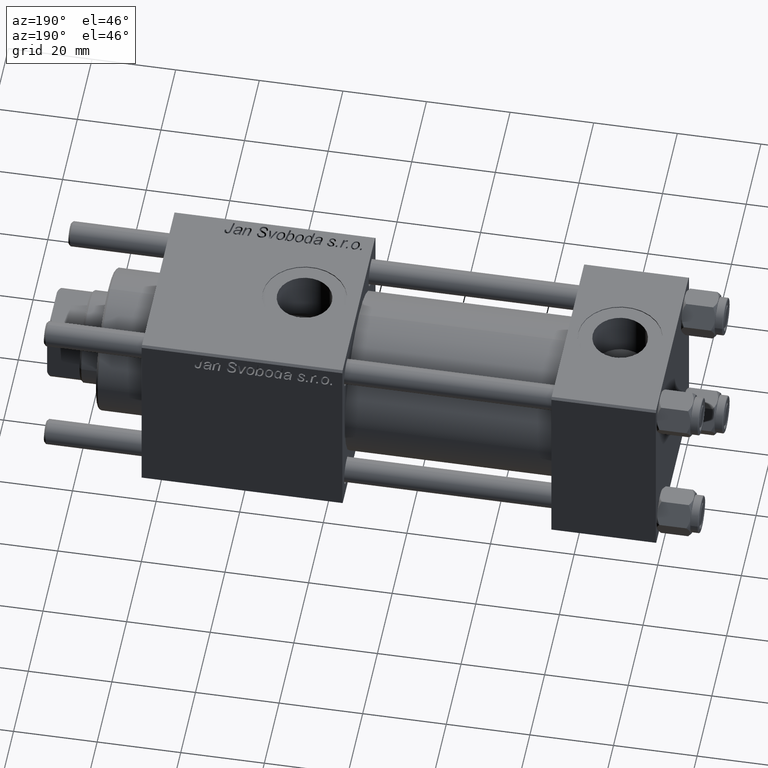
[diagram: clean part render]
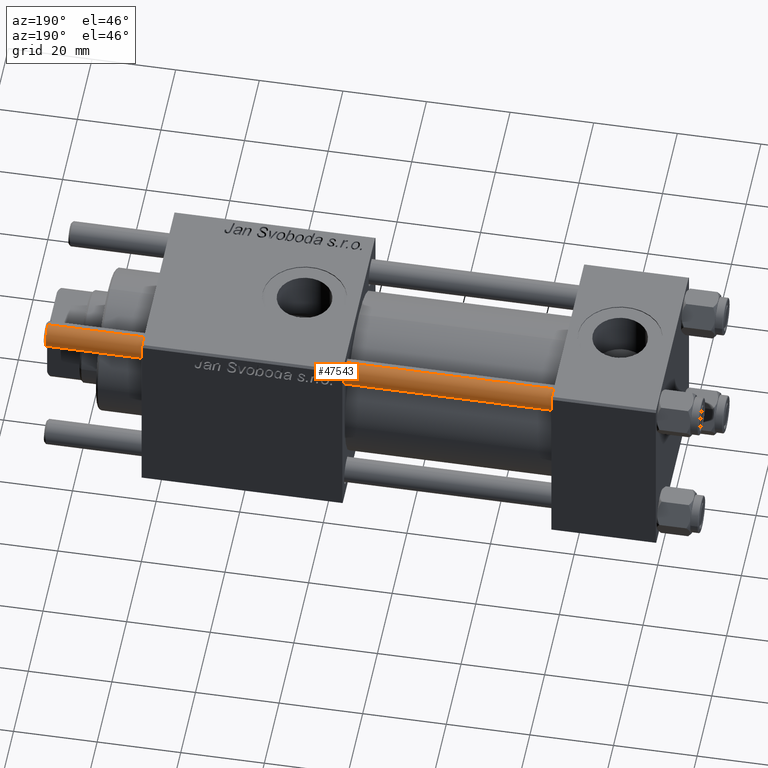
[diagram: same view with one face highlighted and labeled with its STEP entity id]
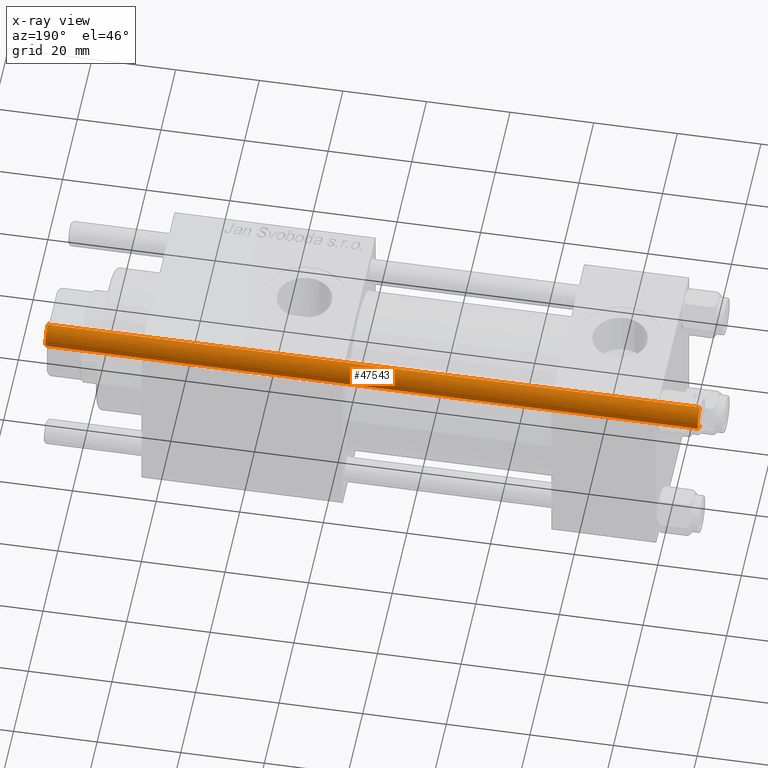
[diagram: x-ray of the same camera — body ghosted, the highlighted face saturated]
A machine part, auxiliary view. The second image highlights one B-rep face of the part: STEP entity #47543.
The next image is the same camera in x-ray: the body ghosted, the highlighted face saturated — about 0% of this face is hidden behind the body in this view.
In plain terms, the highlighted cylindrical surface (edge-blend (fillet) strip) has radius 3 mm, axis along (1, -0, -0).
Its self-contained STEP definition (entity closure, byte-faithful):
#1244 = EDGE_CURVE ( 'NONE', #13623, #37311, #33005, .T. ) ;
#1531 = ORIENTED_EDGE ( 'NONE', *, *, #1244, .T. ) ;
#1626 = ORIENTED_EDGE ( 'NONE', *, *, #54960, .F. ) ;
#2088 = CARTESIAN_POINT ( 'NONE',  ( 0.000000000000000000, 0.000000000000000000, 157.0000000000000000 ) ) ;
#2196 = ORIENTED_EDGE ( 'NONE', *, *, #16525, .T. ) ;
#4806 = LINE ( 'NONE', #22880, #20183 ) ;
#8496 = EDGE_CURVE ( 'NONE', #18964, #39158, #57829, .T. ) ;
#8785 = VECTOR ( 'NONE', #31041, 1000.000000000000000 ) ;
#10405 = DIRECTION ( 'NONE',  ( -1.000000000000000000, 0.000000000000000000, 0.000000000000000000 ) ) ;
#12736 = ORIENTED_EDGE ( 'NONE', *, *, #8496, .T. ) ;
#13623 = VERTEX_POINT ( 'NONE', #57663 ) ;
#15352 = DIRECTION ( 'NONE',  ( 1.000000000000000000, 0.000000000000000000, 0.000000000000000000 ) ) ;
#16525 = EDGE_CURVE ( 'NONE', #39158, #13623, #24953, .T. ) ;
#18964 = VERTEX_POINT ( 'NONE', #40101 ) ;
#20082 = CARTESIAN_POINT ( 'NONE',  ( 0.000000000000000000, 0.000000000000000000, 156.5000000000000284 ) ) ;
#20183 = VECTOR ( 'NONE', #47961, 1000.000000000000000 ) ;
#22819 = EDGE_LOOP ( 'NONE', ( #12736, #2196, #1531, #1626 ) ) ;
#22880 = CARTESIAN_POINT ( 'NONE',  ( -3.000000000000000444, 0.000000000000000000, 157.0000000000000000 ) ) ;
#23495 = CARTESIAN_POINT ( 'NONE',  ( 0.000000000000000000, 0.000000000000000000, 0.4999999999999726885 ) ) ;
#23800 = AXIS2_PLACEMENT_3D ( 'NONE', #20082, #50886, #15352 ) ;
#24362 = CARTESIAN_POINT ( 'NONE',  ( 3.000000000000000444, 3.673940397442060361E-16, 156.5000000000000284 ) ) ;
#24953 = LINE ( 'NONE', #52756, #8785 ) ;
#27343 = CARTESIAN_POINT ( 'NONE',  ( -3.000000000000000444, 0.000000000000000000, 0.4999999999999726885 ) ) ;
#31041 = DIRECTION ( 'NONE',  ( -0.000000000000000000, -0.000000000000000000, -1.000000000000000000 ) ) ;
#33005 = CIRCLE ( 'NONE', #40585, 3.000000000000000444 ) ;
#37047 = AXIS2_PLACEMENT_3D ( 'NONE', #2088, #47372, #10405 ) ;
#37311 = VERTEX_POINT ( 'NONE', #27343 ) ;
#39158 = VERTEX_POINT ( 'NONE', #24362 ) ;
#40101 = CARTESIAN_POINT ( 'NONE',  ( -3.000000000000000444, 0.000000000000000000, 156.5000000000000284 ) ) ;
#40585 = AXIS2_PLACEMENT_3D ( 'NONE', #23495, #41515, #47115 ) ;
#41515 = DIRECTION ( 'NONE',  ( -0.000000000000000000, -0.000000000000000000, 1.000000000000000000 ) ) ;
#47115 = DIRECTION ( 'NONE',  ( 1.000000000000000000, 0.000000000000000000, 0.000000000000000000 ) ) ;
#47372 = DIRECTION ( 'NONE',  ( -0.000000000000000000, -0.000000000000000000, -1.000000000000000000 ) ) ;
#47543 = ADVANCED_FACE ( 'NONE', ( #51245 ), #51529, .T. ) ;
#47961 = DIRECTION ( 'NONE',  ( -0.000000000000000000, -0.000000000000000000, -1.000000000000000000 ) ) ;
#50886 = DIRECTION ( 'NONE',  ( 0.000000000000000000, 0.000000000000000000, -1.000000000000000000 ) ) ;
#51245 = FACE_OUTER_BOUND ( 'NONE', #22819, .T. ) ;
#51529 = CYLINDRICAL_SURFACE ( 'NONE', #37047, 3.000000000000000444 ) ;
#52756 = CARTESIAN_POINT ( 'NONE',  ( 3.000000000000000444, 3.673940397442060361E-16, 157.0000000000000000 ) ) ;
#54960 = EDGE_CURVE ( 'NONE', #18964, #37311, #4806, .T. ) ;
#57663 = CARTESIAN_POINT ( 'NONE',  ( 3.000000000000000444, 3.673940397442060361E-16, 0.4999999999999726885 ) ) ;
#57829 = CIRCLE ( 'NONE', #23800, 3.000000000000000444 ) ;